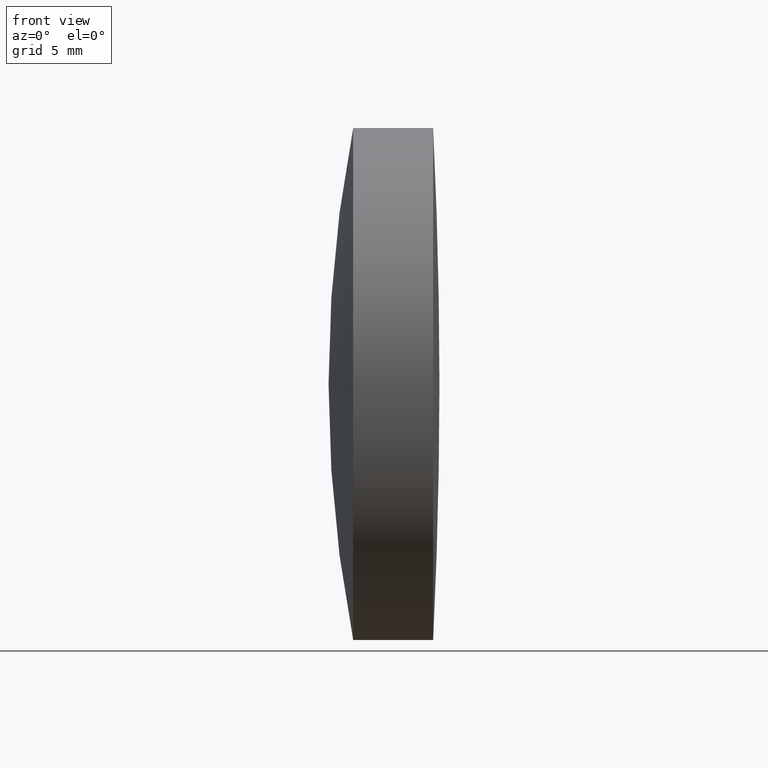
[diagram: clean part render]
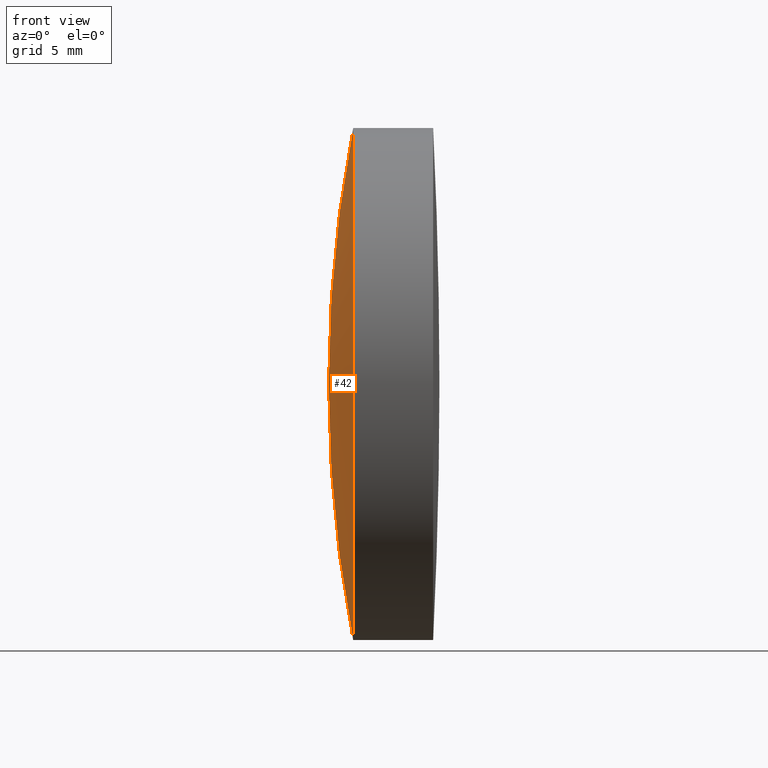
[diagram: same view with one face highlighted and labeled with its STEP entity id]
A machine part, front view. The second image highlights one B-rep face of the part: STEP entity #42.
In plain terms, the highlighted spherical surface has radius 66.68 mm.
Its self-contained STEP definition (entity closure, byte-faithful):
#2 = SPHERICAL_SURFACE ( 'NONE', #199, 66.67999999999999300 ) ;
#35 = CIRCLE ( 'NONE', #297, 12.70000000000000600 ) ;
#38 = CARTESIAN_POINT ( 'NONE',  ( 299.7001259381128200, 0.0000000000000000000, 2.776124129692395000E-015 ) ) ;
#40 = EDGE_CURVE ( 'NONE', #201, #286, #165, .T. ) ;
#42 = ADVANCED_FACE ( 'NONE', ( #122 ), #2, .T. ) ;
#49 = CARTESIAN_POINT ( 'NONE',  ( 366.3801259381128300, 0.0000000000000000000, 6.859096558049670400E-015 ) ) ;
#53 = EDGE_CURVE ( 'NONE', #264, #286, #265, .T. ) ;
#58 = DIRECTION ( 'NONE',  ( -1.000000000000000000, -0.0000000000000000000, -0.0000000000000000000 ) ) ;
#78 = DIRECTION ( 'NONE',  ( 0.0000000000000000000, 1.000000000000000000, -0.0000000000000000000 ) ) ;
#122 = FACE_OUTER_BOUND ( 'NONE', #200, .T. ) ;
#129 = CARTESIAN_POINT ( 'NONE',  ( 366.3801259381128300, 0.0000000000000000000, 6.859096558049670400E-015 ) ) ;
#136 = DIRECTION ( 'NONE',  ( 0.0000000000000000000, 1.224646799147353200E-016, -1.000000000000000000 ) ) ;
#147 = AXIS2_PLACEMENT_3D ( 'NONE', #49, #78, #322 ) ;
#164 = AXIS2_PLACEMENT_3D ( 'NONE', #129, #300, #136 ) ;
#165 = CIRCLE ( 'NONE', #164, 66.67999999999999300 ) ;
#166 = CARTESIAN_POINT ( 'NONE',  ( 300.9207308904956900, -1.555301434917137800E-015, 12.69999999999999900 ) ) ;
#174 = ORIENTED_EDGE ( 'NONE', *, *, #263, .T. ) ;
#180 = CARTESIAN_POINT ( 'NONE',  ( 366.3801259381128300, 0.0000000000000000000, 6.859096558049670400E-015 ) ) ;
#199 = AXIS2_PLACEMENT_3D ( 'NONE', #180, #294, #325 ) ;
#200 = EDGE_LOOP ( 'NONE', ( #174, #342, #339 ) ) ;
#201 = VERTEX_POINT ( 'NONE', #166 ) ;
#221 = CARTESIAN_POINT ( 'NONE',  ( 300.9207308904956900, 0.0000000000000000000, 0.0000000000000000000 ) ) ;
#251 = DIRECTION ( 'NONE',  ( 0.0000000000000000000, 0.0000000000000000000, 1.000000000000000000 ) ) ;
#263 = EDGE_CURVE ( 'NONE', #264, #201, #35, .T. ) ;
#264 = VERTEX_POINT ( 'NONE', #282 ) ;
#265 = CIRCLE ( 'NONE', #147, 66.67999999999999300 ) ;
#282 = CARTESIAN_POINT ( 'NONE',  ( 300.9207308904956900, 0.0000000000000000000, -12.69999999999999200 ) ) ;
#286 = VERTEX_POINT ( 'NONE', #38 ) ;
#294 = DIRECTION ( 'NONE',  ( -0.0000000000000000000, -1.000000000000000000, -0.0000000000000000000 ) ) ;
#297 = AXIS2_PLACEMENT_3D ( 'NONE', #221, #58, #251 ) ;
#300 = DIRECTION ( 'NONE',  ( 0.0000000000000000000, -1.000000000000000000, -1.224646799147353200E-016 ) ) ;
#322 = DIRECTION ( 'NONE',  ( 0.0000000000000000000, 0.0000000000000000000, 1.000000000000000000 ) ) ;
#325 = DIRECTION ( 'NONE',  ( 0.0000000000000000000, 0.0000000000000000000, -1.000000000000000000 ) ) ;
#339 = ORIENTED_EDGE ( 'NONE', *, *, #53, .F. ) ;
#342 = ORIENTED_EDGE ( 'NONE', *, *, #40, .T. ) ;